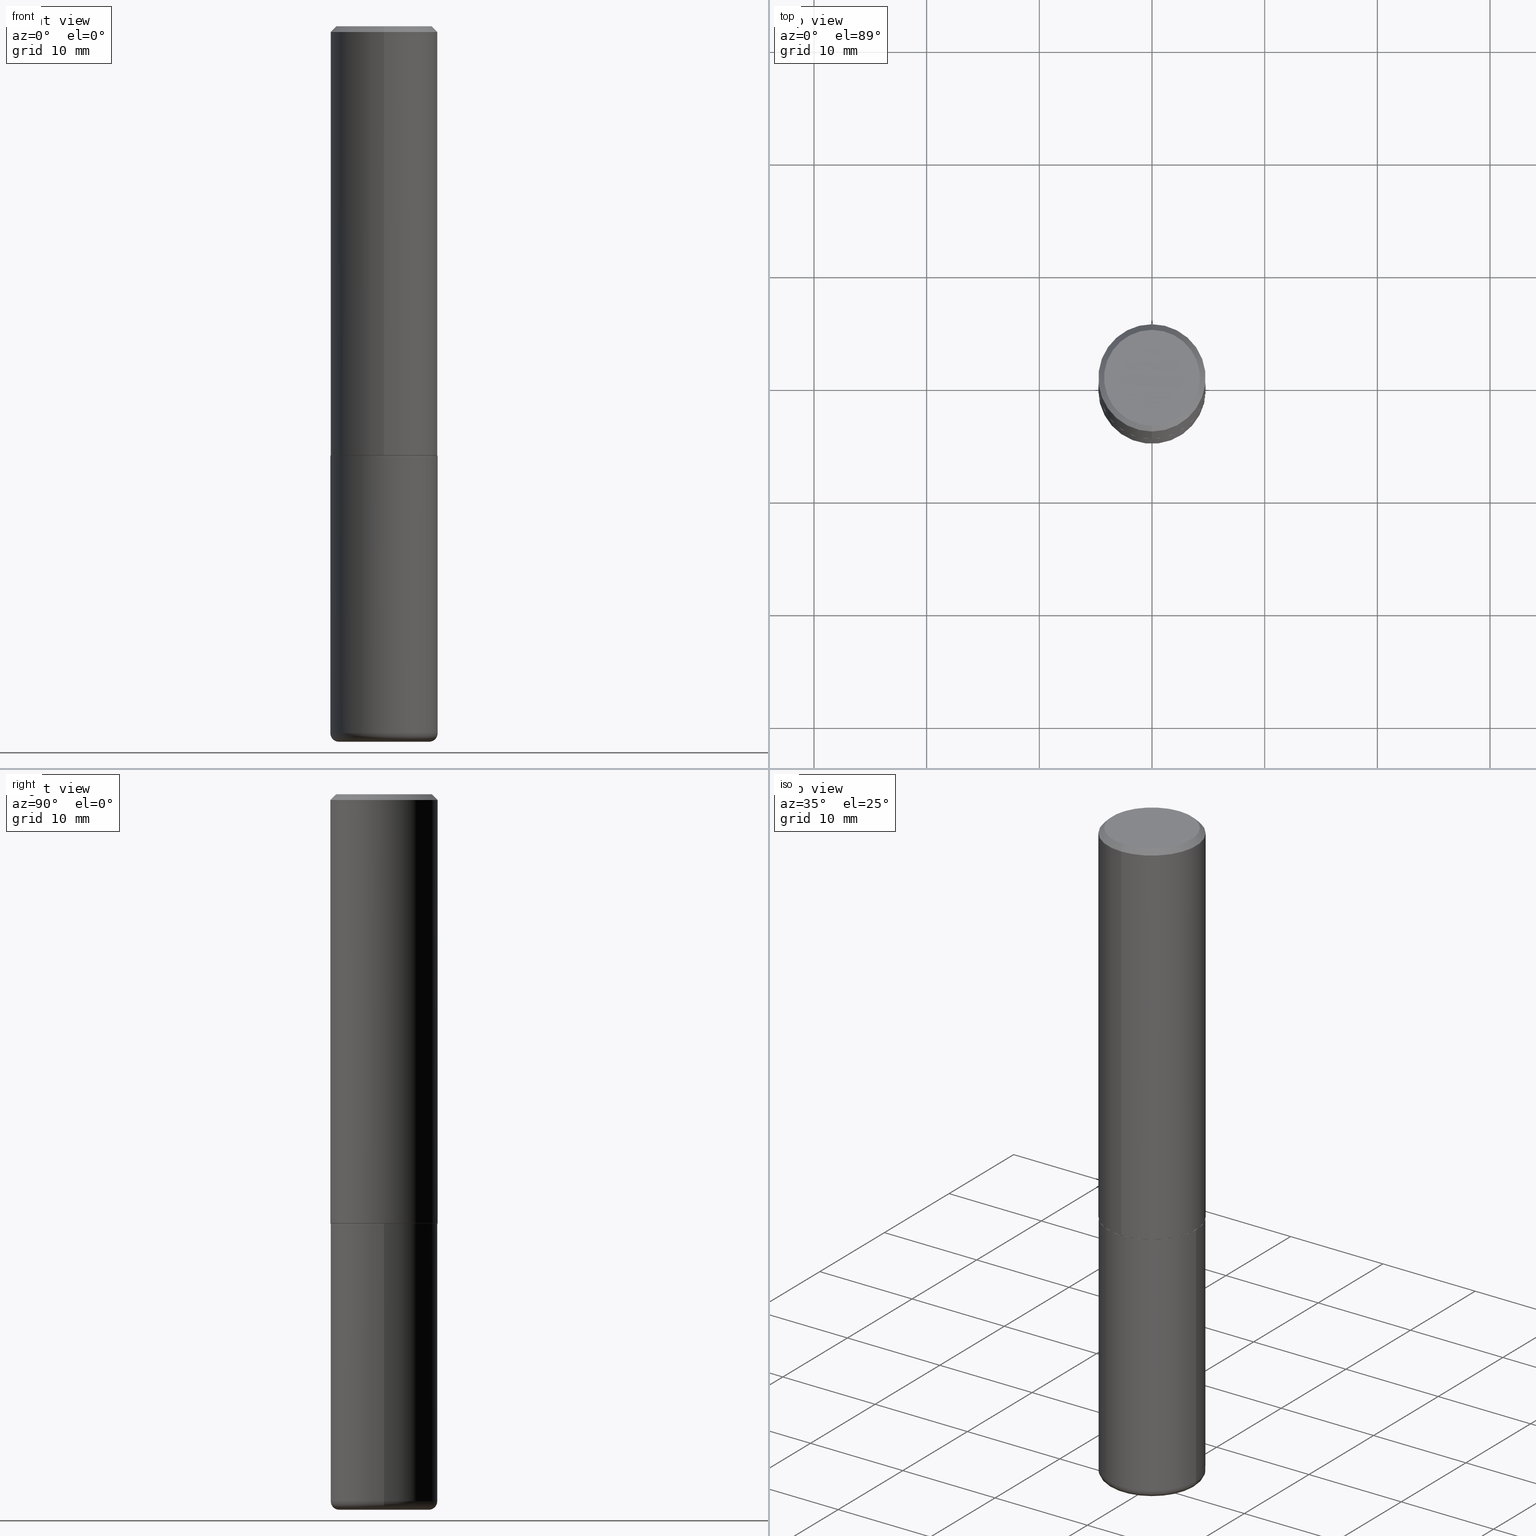
[diagram: canonical four-view strip — front | top / right | iso, engineering-drawing reading convention]
A machine part, canonical four-view strip (front | top / right | iso — engineering-drawing reading convention). The complete STEP part file that produces these views, byte-faithful:
ISO-10303-21;
HEADER;
FILE_DESCRIPTION (( 'STEP AP203' ),
    '1' );
FILE_NAME ('38249.STEP',
    '2024-03-02T19:35:33',
    ( '' ),
    ( '' ),
    'SwSTEP 2.0',
    'SolidWorks 2023',
    '' );
FILE_SCHEMA (( 'CONFIG_CONTROL_DESIGN' ));
ENDSEC;

DATA;
#1 = FACE_OUTER_BOUND ( 'NONE', #202, .T. ) ;
#2 = EDGE_CURVE ( 'NONE', #80, #106, #15, .T. ) ;
#3 = CYLINDRICAL_SURFACE ( 'NONE', #399, 0.1875000000000000555 ) ;
#4 = CARTESIAN_POINT ( 'NONE',  ( -1.286343374582161379E-15, -0.1875000000000000555, -0.01999999999999938979 ) ) ;
#5 = APPROVAL_ROLE ( '' ) ;
#6 = DIRECTION ( 'NONE',  ( 5.024295867787719235E-15, 0.7071067811865017205, 0.7071067811865933139 ) ) ;
#7 = PLANE ( 'NONE',  #378 ) ;
#8 = PERSON_AND_ORGANIZATION ( #26, #278 ) ;
#9 = VERTEX_POINT ( 'NONE', #269 ) ;
#10 = PERSON_AND_ORGANIZATION ( #26, #278 ) ;
#11 = ADVANCED_FACE ( 'NONE', ( #375 ), #32, .T. ) ;
#12 = CARTESIAN_POINT ( 'NONE',  ( 1.309305502066175205E-15, 0.1874999999999999167, -0.02000000000000069431 ) ) ;
#13 = DIRECTION ( 'NONE',  ( -2.445844892912588876E-29, 3.490942761243906817E-15, 1.000000000000000000 ) ) ;
#14 = ORIENTED_EDGE ( 'NONE', *, *, #379, .F. ) ;
#15 = CIRCLE ( 'NONE', #187, 0.1875000000000001943 ) ;
#16 = ORIENTED_EDGE ( 'NONE', *, *, #111, .T. ) ;
#17 = ORIENTED_EDGE ( 'NONE', *, *, #312, .T. ) ;
#18 = ADVANCED_FACE ( 'NONE', ( #1 ), #410, .T. ) ;
#19 = CIRCLE ( 'NONE', #246, 0.03000000000000025910 ) ;
#20 = AXIS2_PLACEMENT_3D ( 'NONE', #357, #133, #35 ) ;
#21 = DATE_AND_TIME ( #306, #351 ) ;
#22 = ORIENTED_EDGE ( 'NONE', *, *, #346, .T. ) ;
#23 = EDGE_CURVE ( 'NONE', #318, #80, #216, .T. ) ;
#24 = CONICAL_SURFACE ( 'NONE', #123, 0.1874999999999999722, 0.7853981633974469467 ) ;
#25 = AXIS2_PLACEMENT_3D ( 'NONE', #298, #395, #79 ) ;
#26 = PERSON ( 'UNSPECIFIED', 'UNSPECIFIED', 'UNSPECIFIED', ('UNSPECIFIED'), ('UNSPECIFIED'), ('UNSPECIFIED') ) ;
#27 = FACE_OUTER_BOUND ( 'NONE', #240, .T. ) ;
#28 = ADVANCED_FACE ( 'NONE', ( #311 ), #113, .T. ) ;
#29 = FACE_OUTER_BOUND ( 'NONE', #119, .T. ) ;
#30 = DIRECTION ( 'NONE',  ( -6.982962677686266711E-15, -1.000000000000000000, 3.490942761243906423E-15 ) ) ;
#31 = DIRECTION ( 'NONE',  ( -6.982962677686265922E-15, -1.000000000000000000, 2.929595703661408850E-15 ) ) ;
#32 = CONICAL_SURFACE ( 'NONE', #336, 0.1874999999999999722, 0.7853981633974469467 ) ;
#33 = VECTOR ( 'NONE', #6, 39.37007874015748143 ) ;
#34 = ORIENTED_EDGE ( 'NONE', *, *, #115, .T. ) ;
#35 = DIRECTION ( 'NONE',  ( -6.982962677686266711E-15, -1.000000000000000000, 3.490942761243906423E-15 ) ) ;
#36 = EDGE_CURVE ( 'NONE', #318, #264, #326, .T. ) ;
#37 = CARTESIAN_POINT ( 'NONE',  ( 1.332267629550188243E-15, 0.1875000000000000833, -6.545517677332327747E-16 ) ) ;
#38 = DIRECTION ( 'NONE',  ( -4.851104656540957175E-15, -0.7071067811865490160, -0.7071067811865460184 ) ) ;
#39 = LOCAL_TIME ( 14, 35, 33.00000000000000000, #394 ) ;
#40 = LINE ( 'NONE', #43, #163 ) ;
#41 = EDGE_LOOP ( 'NONE', ( #141, #46, #330, #197 ) ) ;
#42 = CC_DESIGN_PERSON_AND_ORGANIZATION_ASSIGNMENT ( #186, #131, ( #303 ) ) ;
#43 = CARTESIAN_POINT ( 'NONE',  ( 0.1875000000000000555, -1.309305502066175205E-15, 9.142831454617382414E-30 ) ) ;
#44 = ORIENTED_EDGE ( 'NONE', *, *, #111, .F. ) ;
#45 = DIRECTION ( 'NONE',  ( -2.445844892912588876E-29, 3.490942761243906817E-15, 1.000000000000000000 ) ) ;
#46 = ORIENTED_EDGE ( 'NONE', *, *, #288, .T. ) ;
#47 = VECTOR ( 'NONE', #340, 39.37007874015748143 ) ;
#48 = AXIS2_PLACEMENT_3D ( 'NONE', #109, #82, #169 ) ;
#49 = COORDINATED_UNIVERSAL_TIME_OFFSET ( 5, 0, .BEHIND. ) ;
#50 = EDGE_CURVE ( 'NONE', #282, #155, #389, .T. ) ;
#51 = ORIENTED_EDGE ( 'NONE', *, *, #346, .F. ) ;
#52 = DIRECTION ( 'NONE',  ( 1.000000000000000000, -6.982962677686266711E-15, 0.000000000000000000 ) ) ;
#53 = PERSON_AND_ORGANIZATION_ROLE ( 'creator' ) ;
#54 = DIRECTION ( 'NONE',  ( 2.445844892912588876E-29, -3.490942761243906817E-15, -1.000000000000000000 ) ) ;
#55 = LENGTH_MEASURE_WITH_UNIT ( LENGTH_MEASURE( 0.02539999999999999897 ), #309 );
#56 = CIRCLE ( 'NONE', #188, 0.1874999999999999722 ) ;
#57 = DIRECTION ( 'NONE',  ( -6.982962677686265922E-15, -1.000000000000000000, 2.929595703661408850E-15 ) ) ;
#58 = ORIENTED_EDGE ( 'NONE', *, *, #302, .F. ) ;
#59 = ADVANCED_FACE ( 'NONE', ( #203 ), #99, .T. ) ;
#60 = DIRECTION ( 'NONE',  ( -4.937700262164211199E-15, -0.7071067811864968355, 0.7071067811865981989 ) ) ;
#61 = DIRECTION ( 'NONE',  ( -6.982962677686266711E-15, -1.000000000000000000, 3.491481338843145583E-15 ) ) ;
#62 = DIRECTION ( 'NONE',  ( 2.445844892912588876E-29, -3.490942761243906817E-15, -1.000000000000000000 ) ) ;
#63 = VECTOR ( 'NONE', #60, 39.37007874015748143 ) ;
#64 = CARTESIAN_POINT ( 'NONE',  ( -1.302322539388451720E-15, -0.1865000000000051894, -1.499999999999999778 ) ) ;
#65 = CARTESIAN_POINT ( 'NONE',  ( -1.286343374582161379E-15, -0.1875000000000000555, -0.01999999999999938979 ) ) ;
#66 = CARTESIAN_POINT ( 'NONE',  ( 4.891689785825187560E-31, -6.981885522487828820E-17, -0.02000000000000004205 ) ) ;
#67 = CARTESIAN_POINT ( 'NONE',  ( 4.891689785825187560E-31, -6.981885522487828820E-17, -0.02000000000000004205 ) ) ;
#68 = DIRECTION ( 'NONE',  ( -2.445844892912588876E-29, 3.490942761243906817E-15, 1.000000000000000000 ) ) ;
#69 = ORIENTED_EDGE ( 'NONE', *, *, #372, .F. ) ;
#70 = AXIS2_PLACEMENT_3D ( 'NONE', #352, #213, #354 ) ;
#71 = LOCAL_TIME ( 14, 35, 33.00000000000000000, #229 ) ;
#72 = CARTESIAN_POINT ( 'NONE',  ( 6.040307951277287977E-29, -8.623958906942569995E-15, -2.470000000000000195 ) ) ;
#73 = CARTESIAN_POINT ( 'NONE',  ( 0.1875000000000000278, -6.546527510330893974E-15, -1.500000000000000222 ) ) ;
#74 = APPROVAL_DATE_TIME ( #225, #212 ) ;
#75 = ADVANCED_FACE ( 'NONE', ( #376 ), #24, .T. ) ;
#76 = AXIS2_PLACEMENT_3D ( 'NONE', #152, #285, #418 ) ;
#77 = APPROVAL_PERSON_ORGANIZATION ( #369, #193, #78 ) ;
#78 = APPROVAL_ROLE ( '' ) ;
#79 = DIRECTION ( 'NONE',  ( 1.000000000000000000, -6.982962677686267499E-15, 0.000000000000000000 ) ) ;
#80 = VERTEX_POINT ( 'NONE', #315 ) ;
#81 = PERSON_AND_ORGANIZATION ( #26, #278 ) ;
#82 = DIRECTION ( 'NONE',  ( 2.438088387897960049E-29, -3.491481338843145188E-15, -1.000000000000000000 ) ) ;
#83 = ORIENTED_EDGE ( 'NONE', *, *, #36, .T. ) ;
#84 = APPLICATION_PROTOCOL_DEFINITION ( 'international standard', 'config_control_design', 1994, #290 ) ;
#85 = EDGE_LOOP ( 'NONE', ( #126, #275 ) ) ;
#86 = CONICAL_SURFACE ( 'NONE', #161, 0.1864999999999999714, 0.7853981633973801113 ) ;
#87 = CIRCLE ( 'NONE', #25, 0.1575000000000000289 ) ;
#88 = DIRECTION ( 'NONE',  ( 1.000000000000000000, 0.000000000000000000, 0.000000000000000000 ) ) ;
#89 = VERTEX_POINT ( 'NONE', #122 ) ;
#90 = ADVANCED_FACE ( 'NONE', ( #29 ), #148, .T. ) ;
#91 = AXIS2_PLACEMENT_3D ( 'NONE', #268, #274, #88 ) ;
#92 = MECHANICAL_CONTEXT ( 'NONE', #219, 'mechanical' ) ;
#93 = ORIENTED_EDGE ( 'NONE', *, *, #302, .T. ) ;
#94 = ADVANCED_FACE ( 'NONE', ( #27 ), #214, .F. ) ;
#95 = CARTESIAN_POINT ( 'NONE',  ( 3.668767339368883594E-29, -5.236414141865861409E-15, -1.500000000000000444 ) ) ;
#96 = ORIENTED_EDGE ( 'NONE', *, *, #355, .F. ) ;
#97 = DIRECTION ( 'NONE',  ( 1.000000000000000000, -6.982962677686265922E-15, 0.000000000000000000 ) ) ;
#98 = SECURITY_CLASSIFICATION_LEVEL ( 'unclassified' ) ;
#99 = TOROIDAL_SURFACE ( 'NONE', #242, 0.1575000000000000289, 0.03000000000000025910 ) ;
#100 = CC_DESIGN_APPROVAL ( #325, ( #404 ) ) ;
#101 = DIRECTION ( 'NONE',  ( -2.445844892912588876E-29, 3.490942761243906817E-15, 1.000000000000000000 ) ) ;
#102 = DIRECTION ( 'NONE',  ( -2.445844892912588876E-29, 3.490942761243906817E-15, 1.000000000000000000 ) ) ;
#103 = DIRECTION ( 'NONE',  ( 7.105427357601001859E-15, 1.000000000000000000, -3.491481338843145583E-15 ) ) ;
#104 = ORIENTED_EDGE ( 'NONE', *, *, #36, .F. ) ;
#105 = CALENDAR_DATE ( 2024, 2, 3 ) ;
#106 = VERTEX_POINT ( 'NONE', #177 ) ;
#107 = CIRCLE ( 'NONE', #70, 0.1875000000000000278 ) ;
#108 = CARTESIAN_POINT ( 'NONE',  ( 1.239475875289312499E-15, 0.1675000000000000100, -6.147027116869298551E-16 ) ) ;
#109 = CARTESIAN_POINT ( 'NONE',  ( 3.668203209277704895E-29, -5.237222008264718177E-15, -1.500000000000000222 ) ) ;
#110 = ORIENTED_EDGE ( 'NONE', *, *, #312, .F. ) ;
#111 = EDGE_CURVE ( 'NONE', #9, #112, #283, .T. ) ;
#112 = VERTEX_POINT ( 'NONE', #108 ) ;
#113 = TOROIDAL_SURFACE ( 'NONE', #270, 0.1575000000000000289, 0.03000000000000025910 ) ;
#114 = CLOSED_SHELL ( 'NONE', ( #153, #250, #75, #11, #90, #18, #94, #144 ) ) ;
#115 = EDGE_CURVE ( 'NONE', #170, #239, #397, .T. ) ;
#116 = EDGE_LOOP ( 'NONE', ( #251, #140 ) ) ;
#117 = VECTOR ( 'NONE', #38, 39.37007874015748143 ) ;
#118 = CARTESIAN_POINT ( 'NONE',  ( 6.040307951277287977E-29, -8.623958906942569995E-15, -2.470000000000000195 ) ) ;
#119 = EDGE_LOOP ( 'NONE', ( #69, #223, #124, #299 ) ) ;
#120 = EDGE_CURVE ( 'NONE', #338, #155, #386, .T. ) ;
#121 = DIRECTION ( 'NONE',  ( 1.000000000000000000, -6.982962677686265922E-15, 4.876176775795935793E-29 ) ) ;
#122 = CARTESIAN_POINT ( 'NONE',  ( 1.309305502066175205E-15, 0.1874999999999999167, -0.02000000000000069431 ) ) ;
#123 = AXIS2_PLACEMENT_3D ( 'NONE', #67, #62, #353 ) ;
#124 = ORIENTED_EDGE ( 'NONE', *, *, #174, .T. ) ;
#125 = CARTESIAN_POINT ( 'NONE',  ( 3.668203209277704895E-29, -5.237222008264718177E-15, -1.500000000000000222 ) ) ;
#126 = ORIENTED_EDGE ( 'NONE', *, *, #50, .T. ) ;
#127 = CARTESIAN_POINT ( 'NONE',  ( 1.328714915871423829E-15, 0.1864999999999947533, -1.500000000000000888 ) ) ;
#128 = PERSON_AND_ORGANIZATION_ROLE ( 'design_supplier' ) ;
#129 = CARTESIAN_POINT ( 'NONE',  ( 3.668767339368883594E-29, -5.236414141865861409E-15, -1.500000000000000444 ) ) ;
#130 = CARTESIAN_POINT ( 'NONE',  ( 0.000000000000000000, 0.000000000000000000, 0.000000000000000000 ) ) ;
#131 = PERSON_AND_ORGANIZATION_ROLE ( 'classification_officer' ) ;
#132 = LOCAL_TIME ( 14, 35, 33.00000000000000000, #49 ) ;
#133 = DIRECTION ( 'NONE',  ( -2.445844892912588876E-29, 3.490942761243906817E-15, 1.000000000000000000 ) ) ;
#134 = CC_DESIGN_PERSON_AND_ORGANIZATION_ASSIGNMENT ( #344, #276, ( #261 ) ) ;
#135 = DIRECTION ( 'NONE',  ( -2.445844892912588876E-29, 3.490942761243906817E-15, 1.000000000000000000 ) ) ;
#136 = ORIENTED_EDGE ( 'NONE', *, *, #355, .T. ) ;
#137 = CARTESIAN_POINT ( 'NONE',  ( 1.169646248512449595E-15, 0.1675000000000000100, -5.997178120976420969E-16 ) ) ;
#138 = DIRECTION ( 'NONE',  ( -6.982962677686265922E-15, -1.000000000000000000, 3.490942761243906817E-15 ) ) ;
#139 = LINE ( 'NONE', #37, #217 ) ;
#140 = ORIENTED_EDGE ( 'NONE', *, *, #115, .F. ) ;
#141 = ORIENTED_EDGE ( 'NONE', *, *, #401, .T. ) ;
#142 = ORIENTED_EDGE ( 'NONE', *, *, #168, .T. ) ;
#143 = AXIS2_PLACEMENT_3D ( 'NONE', #249, #321, #138 ) ;
#144 = ADVANCED_FACE ( 'NONE', ( #151 ), #293, .F. ) ;
#145 = ORIENTED_EDGE ( 'NONE', *, *, #183, .F. ) ;
#146 = VERTEX_POINT ( 'NONE', #65 ) ;
#147 = CLOSED_SHELL ( 'NONE', ( #280, #28, #416, #158, #59, #208 ) ) ;
#148 = CYLINDRICAL_SURFACE ( 'NONE', #253, 0.1875000000000000833 ) ;
#149 = LINE ( 'NONE', #281, #205 ) ;
#150 = DIRECTION ( 'NONE',  ( 2.445844892912588876E-29, -3.490942761243906423E-15, -1.000000000000000000 ) ) ;
#151 = FACE_OUTER_BOUND ( 'NONE', #334, .T. ) ;
#152 = CARTESIAN_POINT ( 'NONE',  ( 3.668767339368883594E-29, -5.236414141865861409E-15, -1.500000000000000444 ) ) ;
#153 = ADVANCED_FACE ( 'NONE', ( #265 ), #86, .T. ) ;
#154 = AXIS2_PLACEMENT_3D ( 'NONE', #66, #101, #291 ) ;
#155 = VERTEX_POINT ( 'NONE', #254 ) ;
#156 = CARTESIAN_POINT ( 'NONE',  ( 3.666321494475970828E-29, -5.232923199104616895E-15, -1.499000000000000110 ) ) ;
#157 = LINE ( 'NONE', #164, #33 ) ;
#158 = ADVANCED_FACE ( 'NONE', ( #234 ), #173, .T. ) ;
#159 = FACE_OUTER_BOUND ( 'NONE', #116, .T. ) ;
#160 = DATE_TIME_ROLE ( 'creation_date' ) ;
#161 = AXIS2_PLACEMENT_3D ( 'NONE', #415, #13, #57 ) ;
#162 = CARTESIAN_POINT ( 'NONE',  ( 7.330148026253442751E-46, -1.046228534983812136E-31, -2.996979917857535013E-17 ) ) ;
#163 = VECTOR ( 'NONE', #166, 39.37007874015748143 ) ;
#164 = CARTESIAN_POINT ( 'NONE',  ( 1.325162202192623128E-15, 0.1864999999999947533, -1.500000000000000888 ) ) ;
#165 = ORIENTED_EDGE ( 'NONE', *, *, #23, .F. ) ;
#166 = DIRECTION ( 'NONE',  ( -2.445468806185136877E-29, 3.491481338843145188E-15, 1.000000000000000000 ) ) ;
#167 = EDGE_LOOP ( 'NONE', ( #393, #171, #371, #51 ) ) ;
#168 = EDGE_CURVE ( 'NONE', #239, #385, #19, .T. ) ;
#169 = DIRECTION ( 'NONE',  ( -1.000000000000000000, 6.982962677686265922E-15, -4.876176775795935793E-29 ) ) ;
#170 = VERTEX_POINT ( 'NONE', #175 ) ;
#171 = ORIENTED_EDGE ( 'NONE', *, *, #120, .T. ) ;
#172 = APPROVAL_ROLE ( '' ) ;
#173 = CYLINDRICAL_SURFACE ( 'NONE', #405, 0.1875000000000000555 ) ;
#174 = EDGE_CURVE ( 'NONE', #80, #146, #149, .T. ) ;
#175 = CARTESIAN_POINT ( 'NONE',  ( -0.1575000000000000289, -7.450644907839043165E-15, -2.500000000000000444 ) ) ;
#176 = CC_DESIGN_PERSON_AND_ORGANIZATION_ASSIGNMENT ( #10, #128, ( #406 ) ) ;
#177 = CARTESIAN_POINT ( 'NONE',  ( 1.332267629550206781E-15, 0.1874999999999949485, -1.499000000000000554 ) ) ;
#178 = DIRECTION ( 'NONE',  ( -2.445844892912588876E-29, 3.490942761243906817E-15, 1.000000000000000000 ) ) ;
#179 = FACE_OUTER_BOUND ( 'NONE', #192, .T. ) ;
#180 = CIRCLE ( 'NONE', #301, 0.1875000000000001943 ) ;
#181 = APPROVAL_PERSON_ORGANIZATION ( #8, #212, #5 ) ;
#182 = DIRECTION ( 'NONE',  ( 2.438088387897960049E-29, -3.491481338843145188E-15, -1.000000000000000000 ) ) ;
#183 = EDGE_CURVE ( 'NONE', #155, #282, #107, .T. ) ;
#184 = CALENDAR_DATE ( 2024, 2, 3 ) ;
#185 = DIRECTION ( 'NONE',  ( -6.982962677686265922E-15, -1.000000000000000000, 2.929595703661408850E-15 ) ) ;
#186 = PERSON_AND_ORGANIZATION ( #26, #278 ) ;
#187 = AXIS2_PLACEMENT_3D ( 'NONE', #207, #380, #347 ) ;
#188 = AXIS2_PLACEMENT_3D ( 'NONE', #230, #45, #370 ) ;
#189 = EDGE_LOOP ( 'NONE', ( #83, #408, #266, #165 ) ) ;
#190 = CALENDAR_DATE ( 2024, 2, 3 ) ;
#191 = PRODUCT_DEFINITION_SHAPE ( 'NONE', 'NONE',  #404 ) ;
#192 = EDGE_LOOP ( 'NONE', ( #400, #209, #232, #248 ) ) ;
#193 = APPROVAL ( #327, 'UNSPECIFIED' ) ;
#194 = DIRECTION ( 'NONE',  ( 6.982962677686265922E-15, 1.000000000000000000, -3.490942761243906423E-15 ) ) ;
#195 = ORIENTED_EDGE ( 'NONE', *, *, #233, .F. ) ;
#196 = PERSON_AND_ORGANIZATION ( #26, #278 ) ;
#197 = ORIENTED_EDGE ( 'NONE', *, *, #168, .F. ) ;
#198 = AXIS2_PLACEMENT_3D ( 'NONE', #95, #178, #31 ) ;
#199 = CC_DESIGN_APPROVAL ( #212, ( #406 ) ) ;
#200 = APPROVAL_DATE_TIME ( #374, #325 ) ;
#201 = EDGE_CURVE ( 'NONE', #146, #89, #342, .T. ) ;
#202 = EDGE_LOOP ( 'NONE', ( #14, #93, #286, #195 ) ) ;
#203 = FACE_OUTER_BOUND ( 'NONE', #238, .T. ) ;
#204 = COORDINATED_UNIVERSAL_TIME_OFFSET ( 5, 0, .BEHIND. ) ;
#205 = VECTOR ( 'NONE', #413, 39.37007874015748143 ) ;
#206 = CIRCLE ( 'NONE', #411, 0.1864999999999999714 ) ;
#207 = CARTESIAN_POINT ( 'NONE',  ( 3.666321494475970828E-29, -5.232923199104616895E-15, -1.499000000000000110 ) ) ;
#208 = ADVANCED_FACE ( 'NONE', ( #159 ), #7, .T. ) ;
#209 = ORIENTED_EDGE ( 'NONE', *, *, #372, .T. ) ;
#210 = CARTESIAN_POINT ( 'NONE',  ( 0.000000000000000000, 0.000000000000000000, 0.000000000000000000 ) ) ;
#211 = APPROVAL_PERSON_ORGANIZATION ( #196, #325, #172 ) ;
#212 = APPROVAL ( #388, 'UNSPECIFIED' ) ;
#213 = DIRECTION ( 'NONE',  ( -2.445468806185136597E-29, 3.491481338843145583E-15, 1.000000000000000000 ) ) ;
#214 = PLANE ( 'NONE',  #76 ) ;
#215 = ORIENTED_EDGE ( 'NONE', *, *, #241, .F. ) ;
#216 = LINE ( 'NONE', #64, #63 ) ;
#217 = VECTOR ( 'NONE', #292, 39.37007874015748143 ) ;
#218 = FACE_OUTER_BOUND ( 'NONE', #167, .T. ) ;
#219 = APPLICATION_CONTEXT ( 'configuration controlled 3d designs of mechanical parts and assemblies' ) ;
#220 = MANIFOLD_SOLID_BREP ( 'Body-Move/Copy2[1]', #147 ) ;
#221 = DIRECTION ( 'NONE',  ( -6.982962677686265922E-15, -1.000000000000000000, 2.913971193241877611E-15 ) ) ;
#222 = LINE ( 'NONE', #12, #328 ) ;
#223 = ORIENTED_EDGE ( 'NONE', *, *, #233, .T. ) ;
#224 = CARTESIAN_POINT ( 'NONE',  ( 5.767437074231431519E-31, -1.740123666032775133E-14, -2.500000000000000000 ) ) ;
#225 = DATE_AND_TIME ( #105, #39 ) ;
#226 = DIRECTION ( 'NONE',  ( -2.445468806185136597E-29, 3.491481338843145583E-15, 1.000000000000000000 ) ) ;
#227 = CIRCLE ( 'NONE', #247, 0.1875000000000000555 ) ;
#228 = ORIENTED_EDGE ( 'NONE', *, *, #241, .T. ) ;
#229 = COORDINATED_UNIVERSAL_TIME_OFFSET ( 5, 0, .BEHIND. ) ;
#230 = CARTESIAN_POINT ( 'NONE',  ( 4.891689785825187560E-31, -6.981885522487828820E-17, -0.02000000000000004205 ) ) ;
#231 = ORIENTED_EDGE ( 'NONE', *, *, #322, .F. ) ;
#232 = ORIENTED_EDGE ( 'NONE', *, *, #201, .F. ) ;
#233 = EDGE_CURVE ( 'NONE', #106, #80, #180, .T. ) ;
#234 = FACE_OUTER_BOUND ( 'NONE', #409, .T. ) ;
#235 = CALENDAR_DATE ( 2024, 2, 3 ) ;
#236 = AXIS2_PLACEMENT_3D ( 'NONE', #162, #359, #402 ) ;
#237 = PERSON_AND_ORGANIZATION ( #26, #278 ) ;
#238 = EDGE_LOOP ( 'NONE', ( #296, #34, #142, #96 ) ) ;
#239 = VERTEX_POINT ( 'NONE', #258 ) ;
#240 = EDGE_LOOP ( 'NONE', ( #104, #58 ) ) ;
#241 = EDGE_CURVE ( 'NONE', #9, #146, #362, .T. ) ;
#242 = AXIS2_PLACEMENT_3D ( 'NONE', #118, #349, #345 ) ;
#243 = CIRCLE ( 'NONE', #284, 0.1875000000000000555 ) ;
#244 = EDGE_LOOP ( 'NONE', ( #44, #228, #332, #231 ) ) ;
#245 = CC_DESIGN_PERSON_AND_ORGANIZATION_ASSIGNMENT ( #237, #53, ( #404 ) ) ;
#246 = AXIS2_PLACEMENT_3D ( 'NONE', #316, #61, #382 ) ;
#247 = AXIS2_PLACEMENT_3D ( 'NONE', #72, #226, #365 ) ;
#248 = ORIENTED_EDGE ( 'NONE', *, *, #174, .F. ) ;
#249 = CARTESIAN_POINT ( 'NONE',  ( 7.330148026253442751E-46, -1.046228534983812136E-31, -2.996979917857535013E-17 ) ) ;
#250 = ADVANCED_FACE ( 'NONE', ( #179 ), #289, .T. ) ;
#251 = ORIENTED_EDGE ( 'NONE', *, *, #401, .F. ) ;
#252 = CARTESIAN_POINT ( 'NONE',  ( 6.040307951277287977E-29, -8.623958906942569995E-15, -2.470000000000000195 ) ) ;
#253 = AXIS2_PLACEMENT_3D ( 'NONE', #383, #279, #30 ) ;
#254 = CARTESIAN_POINT ( 'NONE',  ( -0.1875000000000000278, -5.598322828053456632E-15, -1.500000000000000222 ) ) ;
#255 = CARTESIAN_POINT ( 'NONE',  ( -0.1875000000000000555, 1.332267629550188243E-15, -9.223003294227950793E-30 ) ) ;
#256 = CARTESIAN_POINT ( 'NONE',  ( -0.1575000000000000289, -7.504854098120412392E-15, -2.470000000000000195 ) ) ;
#257 = DIRECTION ( 'NONE',  ( 4.937700262164540942E-15, 0.7071067811865441310, -0.7071067811865509034 ) ) ;
#258 = CARTESIAN_POINT ( 'NONE',  ( 0.1575000000000000289, -9.828519968843453212E-15, -2.500000000000000444 ) ) ;
#259 = CC_DESIGN_PERSON_AND_ORGANIZATION_ASSIGNMENT ( #81, #297, ( #406 ) ) ;
#260 = EDGE_LOOP ( 'NONE', ( #215, #110, #396, #356 ) ) ;
#261 = PRODUCT ( '38249', '38249', '', ( #92 ) ) ;
#262 = FACE_OUTER_BOUND ( 'NONE', #85, .T. ) ;
#263 = CIRCLE ( 'NONE', #236, 0.1675000000000000100 ) ;
#264 = VERTEX_POINT ( 'NONE', #127 ) ;
#265 = FACE_OUTER_BOUND ( 'NONE', #189, .T. ) ;
#266 = ORIENTED_EDGE ( 'NONE', *, *, #2, .F. ) ;
#267 = EDGE_CURVE ( 'NONE', #385, #338, #243, .T. ) ;
#268 = CARTESIAN_POINT ( 'NONE',  ( 0.000000000000000000, 0.000000000000000000, 0.000000000000000000 ) ) ;
#269 = CARTESIAN_POINT ( 'NONE',  ( -1.217738394604446442E-15, -0.1675000000000000100, 5.547631133297791179E-16 ) ) ;
#270 = AXIS2_PLACEMENT_3D ( 'NONE', #412, #317, #381 ) ;
#271 = CIRCLE ( 'NONE', #314, 0.03000000000000025910 ) ;
#272 = DIMENSIONAL_EXPONENTS ( 1.000000000000000000, 0.000000000000000000, 0.000000000000000000, 0.000000000000000000, 0.000000000000000000, 0.000000000000000000, 0.000000000000000000 ) ;
#273 = UNCERTAINTY_MEASURE_WITH_UNIT (LENGTH_MEASURE( 1.000000000000000082E-05 ), #403, 'distance_accuracy_value', 'NONE');
#274 = DIRECTION ( 'NONE',  ( 0.000000000000000000, 0.000000000000000000, 1.000000000000000000 ) ) ;
#275 = ORIENTED_EDGE ( 'NONE', *, *, #183, .T. ) ;
#276 = PERSON_AND_ORGANIZATION_ROLE ( 'design_owner' ) ;
#277 = AXIS2_PLACEMENT_3D ( 'NONE', #137, #150, #194 ) ;
#278 = ORGANIZATION ( 'UNSPECIFIED', 'UNSPECIFIED', '' ) ;
#279 = DIRECTION ( 'NONE',  ( -2.445844892912588876E-29, 3.490942761243906817E-15, 1.000000000000000000 ) ) ;
#280 = ADVANCED_FACE ( 'NONE', ( #218 ), #3, .T. ) ;
#281 = CARTESIAN_POINT ( 'NONE',  ( -1.309305502066175600E-15, -0.1875000000000000833, 6.545517677332327747E-16 ) ) ;
#282 = VERTEX_POINT ( 'NONE', #73 ) ;
#283 = CIRCLE ( 'NONE', #143, 0.1675000000000000100 ) ;
#284 = AXIS2_PLACEMENT_3D ( 'NONE', #252, #387, #97 ) ;
#285 = DIRECTION ( 'NONE',  ( -2.445844892912588876E-29, 3.490942761243906423E-15, 1.000000000000000000 ) ) ;
#286 = ORIENTED_EDGE ( 'NONE', *, *, #23, .T. ) ;
#287 = CARTESIAN_POINT ( 'NONE',  ( 3.668767339368883594E-29, -5.236414141865861409E-15, -1.500000000000000444 ) ) ;
#288 = EDGE_CURVE ( 'NONE', #170, #338, #271, .T. ) ;
#289 = CYLINDRICAL_SURFACE ( 'NONE', #20, 0.1875000000000000833 ) ;
#290 = APPLICATION_CONTEXT ( 'configuration controlled 3d designs of mechanical parts and assemblies' ) ;
#291 = DIRECTION ( 'NONE',  ( -6.982962677686266711E-15, -1.000000000000000000, 3.483106191921935949E-15 ) ) ;
#292 = DIRECTION ( 'NONE',  ( -2.445844892912589156E-29, 3.490942761243906423E-15, 1.000000000000000000 ) ) ;
#293 = PLANE ( 'NONE',  #277 ) ;
#294 = CC_DESIGN_DATE_AND_TIME_ASSIGNMENT ( #21, #160, ( #404 ) ) ;
#295 = CARTESIAN_POINT ( 'NONE',  ( 0.1875000000000001943, -9.933264409008746581E-15, -2.470000000000000195 ) ) ;
#296 = ORIENTED_EDGE ( 'NONE', *, *, #288, .F. ) ;
#297 = PERSON_AND_ORGANIZATION_ROLE ( 'creator' ) ;
#298 = CARTESIAN_POINT ( 'NONE',  ( 6.113672015462842613E-29, -8.728703347107866520E-15, -2.500000000000000444 ) ) ;
#299 = ORIENTED_EDGE ( 'NONE', *, *, #341, .F. ) ;
#300 = DIRECTION ( 'NONE',  ( -2.445468806185136597E-29, 3.491481338843145583E-15, 1.000000000000000000 ) ) ;
#301 = AXIS2_PLACEMENT_3D ( 'NONE', #156, #135, #221 ) ;
#302 = EDGE_CURVE ( 'NONE', #264, #318, #206, .T. ) ;
#303 = SECURITY_CLASSIFICATION ( '', '', #98 ) ;
#304 = DIRECTION ( 'NONE',  ( 1.000000000000000000, -6.982962677686267499E-15, 0.000000000000000000 ) ) ;
#305 = DIRECTION ( 'NONE',  ( 6.982962677686266711E-15, 1.000000000000000000, -3.483106191921935949E-15 ) ) ;
#306 = CALENDAR_DATE ( 2024, 2, 3 ) ;
#307 = LOCAL_TIME ( 14, 35, 33.00000000000000000, #390 ) ;
#308 = PRODUCT_RELATED_PRODUCT_CATEGORY ( 'detail', '', ( #261 ) ) ;
#309 =( LENGTH_UNIT ( ) NAMED_UNIT ( * ) SI_UNIT ( $, .METRE. ) );
#310 =( NAMED_UNIT ( * ) SI_UNIT ( $, .STERADIAN. ) SOLID_ANGLE_UNIT ( ) );
#311 = FACE_OUTER_BOUND ( 'NONE', #41, .T. ) ;
#312 = EDGE_CURVE ( 'NONE', #112, #9, #263, .T. ) ;
#313 = AXIS2_PLACEMENT_3D ( 'NONE', #129, #68, #417 ) ;
#314 = AXIS2_PLACEMENT_3D ( 'NONE', #256, #103, #398 ) ;
#315 = CARTESIAN_POINT ( 'NONE',  ( -1.309305502066139509E-15, -0.1875000000000054123, -1.498999999999999444 ) ) ;
#316 = CARTESIAN_POINT ( 'NONE',  ( 0.1575000000000000289, -9.723775528678158264E-15, -2.470000000000000195 ) ) ;
#317 = DIRECTION ( 'NONE',  ( -2.445468806185136597E-29, 3.491481338843145583E-15, 1.000000000000000000 ) ) ;
#318 = VERTEX_POINT ( 'NONE', #329 ) ;
#319 = AXIS2_PLACEMENT_3D ( 'NONE', #368, #300, #304 ) ;
#320 = CC_DESIGN_APPROVAL ( #193, ( #303 ) ) ;
#321 = DIRECTION ( 'NONE',  ( -2.445844892912588876E-29, 3.490942761243906817E-15, 1.000000000000000000 ) ) ;
#322 = EDGE_CURVE ( 'NONE', #112, #89, #222, .T. ) ;
#323 = DIRECTION ( 'NONE',  ( -1.000000000000000000, 6.982962677686265922E-15, -4.876176775795935793E-29 ) ) ;
#324 = CARTESIAN_POINT ( 'NONE',  ( -0.1875000000000001943, -7.291691277392382147E-15, -2.470000000000000195 ) ) ;
#325 = APPROVAL ( #337, 'UNSPECIFIED' ) ;
#326 = CIRCLE ( 'NONE', #198, 0.1864999999999999714 ) ;
#327 = APPROVAL_STATUS ( 'not_yet_approved' ) ;
#328 = VECTOR ( 'NONE', #257, 39.37007874015748143 ) ;
#329 = CARTESIAN_POINT ( 'NONE',  ( -1.302322539388451720E-15, -0.1865000000000051894, -1.499999999999999778 ) ) ;
#330 = ORIENTED_EDGE ( 'NONE', *, *, #267, .F. ) ;
#331 = APPROVAL_DATE_TIME ( #333, #193 ) ;
#332 = ORIENTED_EDGE ( 'NONE', *, *, #201, .T. ) ;
#333 = DATE_AND_TIME ( #190, #307 ) ;
#334 = EDGE_LOOP ( 'NONE', ( #17, #16 ) ) ;
#335 = ADVANCED_BREP_SHAPE_REPRESENTATION ( '38249', ( #220, #367, #91 ), #343 ) ;
#336 = AXIS2_PLACEMENT_3D ( 'NONE', #339, #54, #305 ) ;
#337 = APPROVAL_STATUS ( 'not_yet_approved' ) ;
#338 = VERTEX_POINT ( 'NONE', #324 ) ;
#339 = CARTESIAN_POINT ( 'NONE',  ( 4.891689785825187560E-31, -6.981885522487828820E-17, -0.02000000000000004205 ) ) ;
#340 = DIRECTION ( 'NONE',  ( -2.445468806185136877E-29, 3.491481338843145188E-15, 1.000000000000000000 ) ) ;
#341 = EDGE_CURVE ( 'NONE', #89, #146, #56, .T. ) ;
#342 = CIRCLE ( 'NONE', #154, 0.1874999999999999722 ) ;
#343 =( GEOMETRIC_REPRESENTATION_CONTEXT ( 3 ) GLOBAL_UNCERTAINTY_ASSIGNED_CONTEXT ( ( #273 ) ) GLOBAL_UNIT_ASSIGNED_CONTEXT ( ( #403, #407, #310 ) ) REPRESENTATION_CONTEXT ( 'NONE', 'WORKASPACE' ) );
#344 = PERSON_AND_ORGANIZATION ( #26, #278 ) ;
#345 = DIRECTION ( 'NONE',  ( 1.000000000000000000, -6.982962677686267499E-15, 4.883557194083113462E-29 ) ) ;
#346 = EDGE_CURVE ( 'NONE', #385, #282, #40, .T. ) ;
#347 = DIRECTION ( 'NONE',  ( -6.982962677686265922E-15, -1.000000000000000000, 2.913971193241877611E-15 ) ) ;
#348 = DIRECTION ( 'NONE',  ( -2.445468806185136597E-29, 3.491481338843145583E-15, 1.000000000000000000 ) ) ;
#349 = DIRECTION ( 'NONE',  ( -2.445468806185136597E-29, 3.491481338843145583E-15, 1.000000000000000000 ) ) ;
#350 = AXIS2_PLACEMENT_3D ( 'NONE', #125, #373, #52 ) ;
#351 = LOCAL_TIME ( 14, 35, 33.00000000000000000, #204 ) ;
#352 = CARTESIAN_POINT ( 'NONE',  ( 3.668203209277704895E-29, -5.237222008264718177E-15, -1.500000000000000222 ) ) ;
#353 = DIRECTION ( 'NONE',  ( 6.982962677686266711E-15, 1.000000000000000000, -3.483106191921935949E-15 ) ) ;
#354 = DIRECTION ( 'NONE',  ( 1.000000000000000000, -6.982962677686266711E-15, 0.000000000000000000 ) ) ;
#355 = EDGE_CURVE ( 'NONE', #338, #385, #227, .T. ) ;
#356 = ORIENTED_EDGE ( 'NONE', *, *, #341, .T. ) ;
#357 = CARTESIAN_POINT ( 'NONE',  ( 0.000000000000000000, 0.000000000000000000, 0.000000000000000000 ) ) ;
#358 = SHAPE_DEFINITION_REPRESENTATION ( #191, #335 ) ;
#359 = DIRECTION ( 'NONE',  ( -2.445844892912588876E-29, 3.490942761243906817E-15, 1.000000000000000000 ) ) ;
#360 = DIRECTION ( 'NONE',  ( -2.445468806185136597E-29, 3.491481338843145583E-15, 1.000000000000000000 ) ) ;
#361 = DATE_TIME_ROLE ( 'classification_date' ) ;
#362 = LINE ( 'NONE', #4, #117 ) ;
#363 = DATE_AND_TIME ( #184, #71 ) ;
#364 = CC_DESIGN_SECURITY_CLASSIFICATION ( #303, ( #406 ) ) ;
#365 = DIRECTION ( 'NONE',  ( 1.000000000000000000, -6.982962677686265922E-15, 0.000000000000000000 ) ) ;
#366 = ORIENTED_EDGE ( 'NONE', *, *, #120, .F. ) ;
#367 = MANIFOLD_SOLID_BREP ( 'Body-Move/Copy2[2]', #114 ) ;
#368 = CARTESIAN_POINT ( 'NONE',  ( 6.113672015462842613E-29, -8.728703347107866520E-15, -2.500000000000000444 ) ) ;
#369 = PERSON_AND_ORGANIZATION ( #26, #278 ) ;
#370 = DIRECTION ( 'NONE',  ( -6.982962677686266711E-15, -1.000000000000000000, 3.483106191921935949E-15 ) ) ;
#371 = ORIENTED_EDGE ( 'NONE', *, *, #50, .F. ) ;
#372 = EDGE_CURVE ( 'NONE', #106, #89, #139, .T. ) ;
#373 = DIRECTION ( 'NONE',  ( -2.445468806185136597E-29, 3.491481338843145583E-15, 1.000000000000000000 ) ) ;
#374 = DATE_AND_TIME ( #235, #132 ) ;
#375 = FACE_OUTER_BOUND ( 'NONE', #260, .T. ) ;
#376 = FACE_OUTER_BOUND ( 'NONE', #244, .T. ) ;
#377 = APPLICATION_PROTOCOL_DEFINITION ( 'international standard', 'config_control_design', 1994, #219 ) ;
#378 = AXIS2_PLACEMENT_3D ( 'NONE', #224, #182, #323 ) ;
#379 = EDGE_CURVE ( 'NONE', #264, #106, #157, .T. ) ;
#380 = DIRECTION ( 'NONE',  ( -2.445844892912588876E-29, 3.490942761243906817E-15, 1.000000000000000000 ) ) ;
#381 = DIRECTION ( 'NONE',  ( 1.000000000000000000, -6.982962677686267499E-15, 4.883557194083113462E-29 ) ) ;
#382 = DIRECTION ( 'NONE',  ( 1.000000000000000000, -6.982962677686273021E-15, 0.000000000000000000 ) ) ;
#383 = CARTESIAN_POINT ( 'NONE',  ( 0.000000000000000000, 0.000000000000000000, 0.000000000000000000 ) ) ;
#384 = CC_DESIGN_DATE_AND_TIME_ASSIGNMENT ( #363, #361, ( #303 ) ) ;
#385 = VERTEX_POINT ( 'NONE', #295 ) ;
#386 = LINE ( 'NONE', #255, #47 ) ;
#387 = DIRECTION ( 'NONE',  ( -2.445468806185136597E-29, 3.491481338843145583E-15, 1.000000000000000000 ) ) ;
#388 = APPROVAL_STATUS ( 'not_yet_approved' ) ;
#389 = CIRCLE ( 'NONE', #350, 0.1875000000000000278 ) ;
#390 = COORDINATED_UNIVERSAL_TIME_OFFSET ( 5, 0, .BEHIND. ) ;
#391 = DIRECTION ( 'NONE',  ( 1.000000000000000000, -6.982962677686265922E-15, 4.876176775795935793E-29 ) ) ;
#392 = PLANE ( 'NONE',  #48 ) ;
#393 = ORIENTED_EDGE ( 'NONE', *, *, #267, .T. ) ;
#394 = COORDINATED_UNIVERSAL_TIME_OFFSET ( 5, 0, .BEHIND. ) ;
#395 = DIRECTION ( 'NONE',  ( -2.445468806185136597E-29, 3.491481338843145583E-15, 1.000000000000000000 ) ) ;
#396 = ORIENTED_EDGE ( 'NONE', *, *, #322, .T. ) ;
#397 = CIRCLE ( 'NONE', #319, 0.1575000000000000289 ) ;
#398 = DIRECTION ( 'NONE',  ( -1.000000000000000000, 7.105427357600994759E-15, 0.000000000000000000 ) ) ;
#399 = AXIS2_PLACEMENT_3D ( 'NONE', #130, #360, #391 ) ;
#400 = ORIENTED_EDGE ( 'NONE', *, *, #2, .T. ) ;
#401 = EDGE_CURVE ( 'NONE', #239, #170, #87, .T. ) ;
#402 = DIRECTION ( 'NONE',  ( -6.982962677686265922E-15, -1.000000000000000000, 3.490942761243906817E-15 ) ) ;
#403 =( CONVERSION_BASED_UNIT ( 'INCH', #55 ) LENGTH_UNIT ( ) NAMED_UNIT ( #272 ) );
#404 = PRODUCT_DEFINITION ( 'UNKNOWN', '', #406, #414 ) ;
#405 = AXIS2_PLACEMENT_3D ( 'NONE', #210, #348, #121 ) ;
#406 = PRODUCT_DEFINITION_FORMATION_WITH_SPECIFIED_SOURCE ( 'ANY', '', #261, .NOT_KNOWN. ) ;
#407 =( NAMED_UNIT ( * ) PLANE_ANGLE_UNIT ( ) SI_UNIT ( $, .RADIAN. ) );
#408 = ORIENTED_EDGE ( 'NONE', *, *, #379, .T. ) ;
#409 = EDGE_LOOP ( 'NONE', ( #366, #136, #22, #145 ) ) ;
#410 = CONICAL_SURFACE ( 'NONE', #313, 0.1864999999999999714, 0.7853981633973801113 ) ;
#411 = AXIS2_PLACEMENT_3D ( 'NONE', #287, #102, #185 ) ;
#412 = CARTESIAN_POINT ( 'NONE',  ( 6.040307951277287977E-29, -8.623958906942569995E-15, -2.470000000000000195 ) ) ;
#413 = DIRECTION ( 'NONE',  ( -2.445844892912589156E-29, 3.490942761243906423E-15, 1.000000000000000000 ) ) ;
#414 = DESIGN_CONTEXT ( 'detailed design', #290, 'design' ) ;
#415 = CARTESIAN_POINT ( 'NONE',  ( 3.668767339368883594E-29, -5.236414141865861409E-15, -1.500000000000000444 ) ) ;
#416 = ADVANCED_FACE ( 'NONE', ( #262 ), #392, .F. ) ;
#417 = DIRECTION ( 'NONE',  ( -6.982962677686265922E-15, -1.000000000000000000, 2.929595703661408850E-15 ) ) ;
#418 = DIRECTION ( 'NONE',  ( -6.982962677686265922E-15, -1.000000000000000000, 3.490942761243906423E-15 ) ) ;
ENDSEC;
END-ISO-10303-21;
